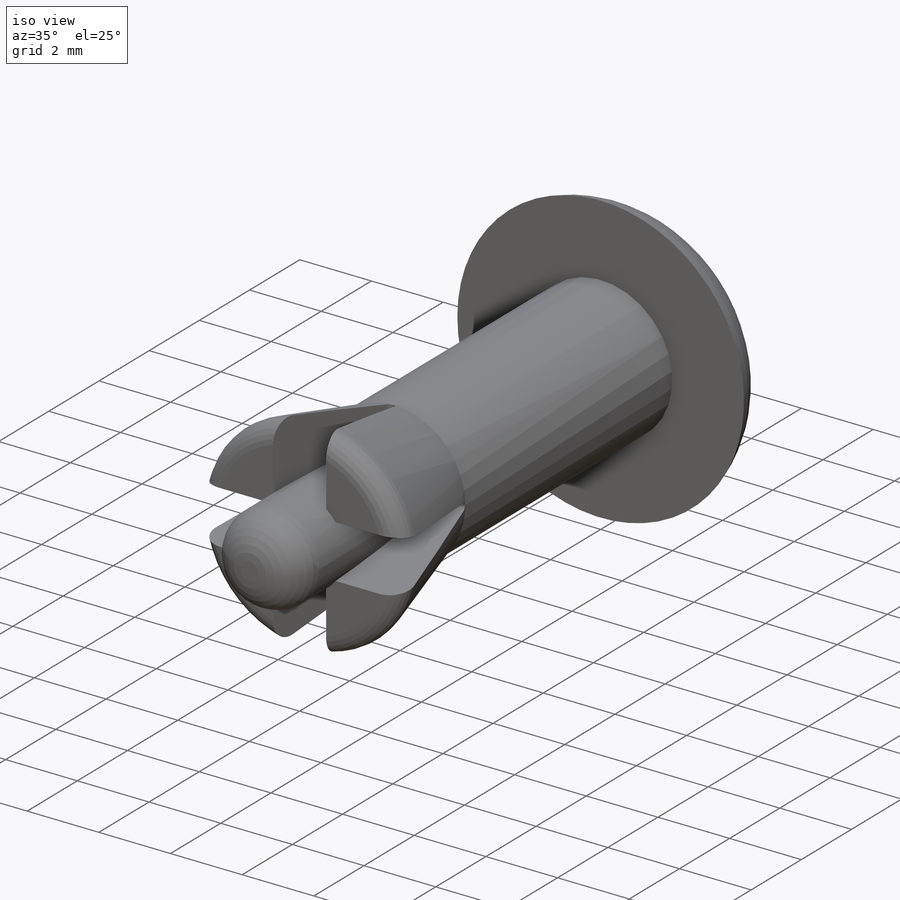
[diagram: iso view]
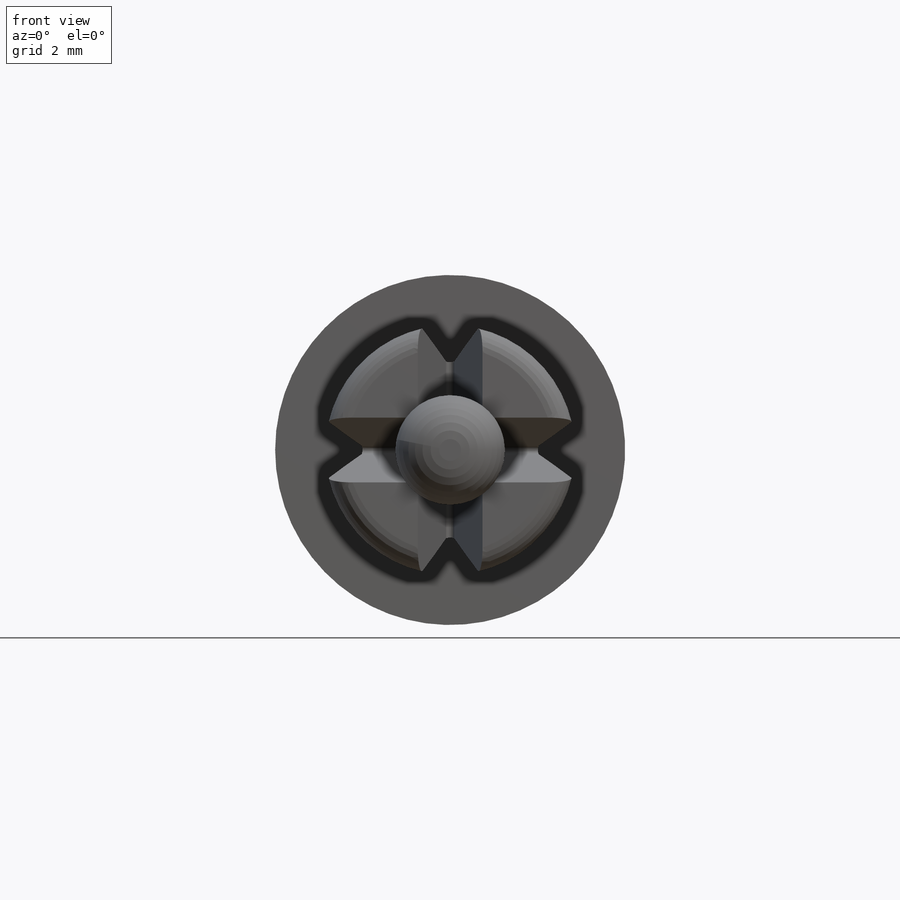
[diagram: front view]
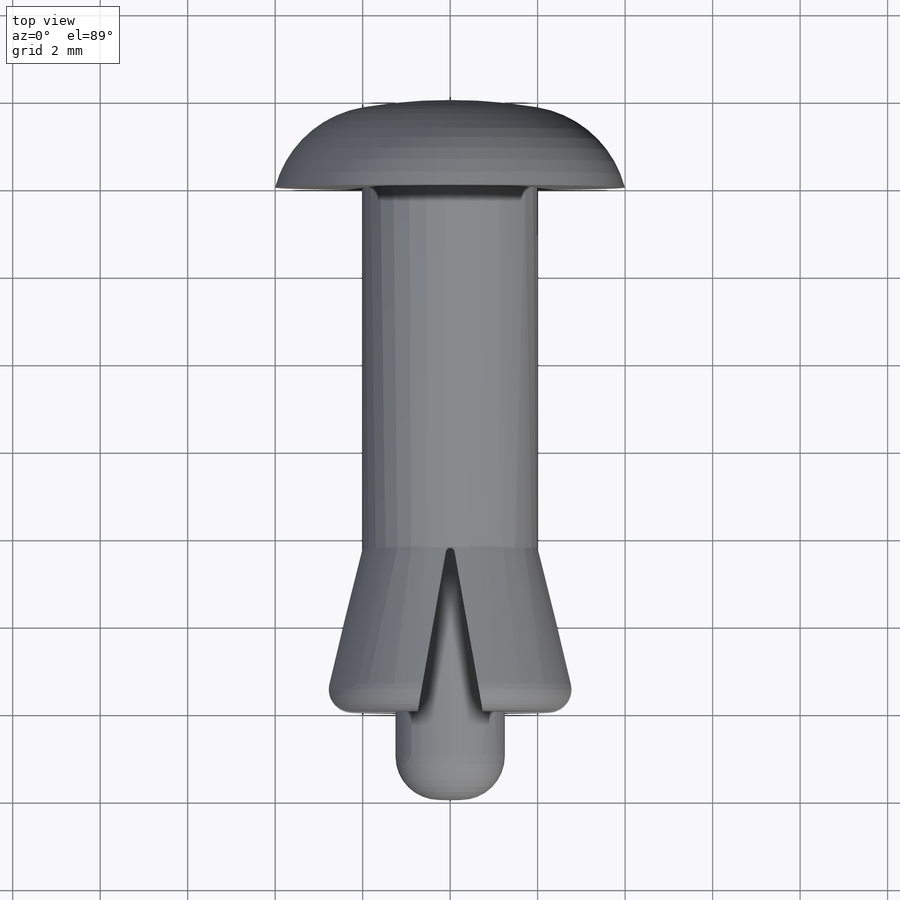
[diagram: top view]
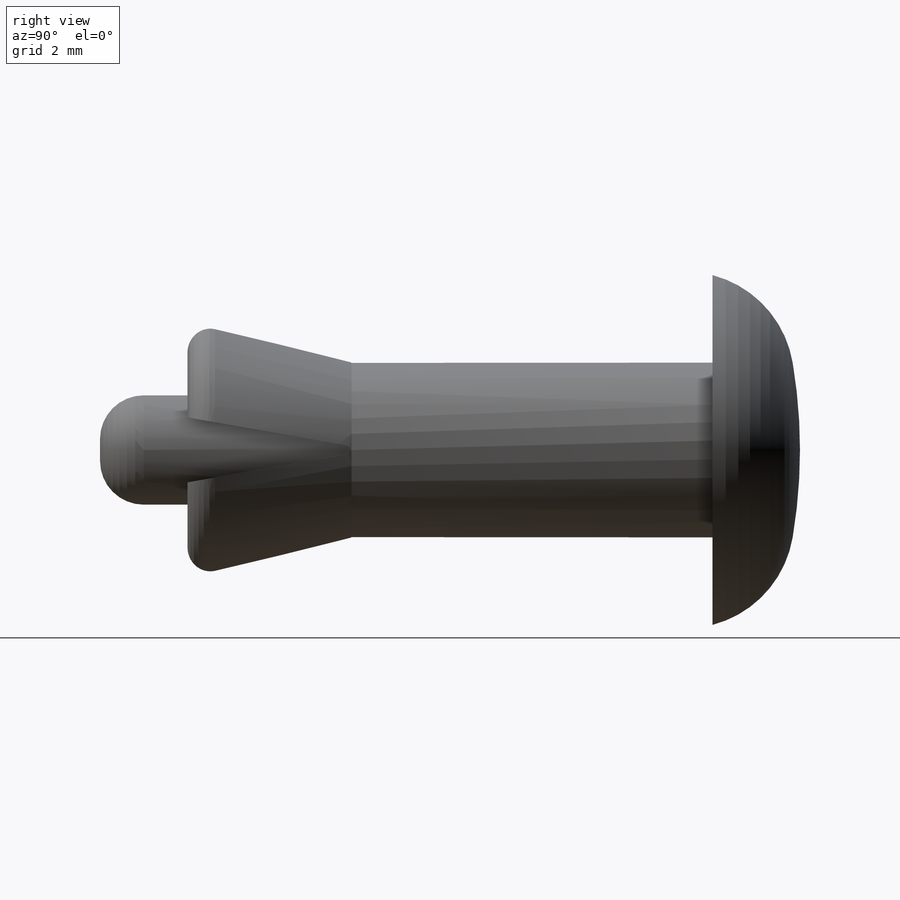
[diagram: right view]
SOLIDWORKS PART (.sldprt)
format: sldprt  version: not decoded by parser v0  size: 251,904 bytes
history: native  units: mm
features: fillet x3, sketch x2, material x1, revolve x1, plane x1, cut_extrude x1, pattern_circular x1 (+12 scaffold rows collapsed)
feature tree (22):
  scaffold x12  (default folders/planes/origin — collapsed)
  material  "PE Low/Medium Density"
  sketch  "Sketch1"  dims[D5=12.0mm D6=2.5mm D1=2.0mm D2=16.0mm D3=8.0mm D4=4.0mm D7=14.0mm D8=8.25mm D9=6.0mm D10=2.5mm]
  revolve  "Revolve1"  Angle=360deg
  fillet  "Fillet1"  Radius=1mm
  fillet  "Fillet2"  Radius=0.5mm
  plane  "Plane1"  Offset=4mm
  sketch  "Sketch2"  dims[c1.D1=~4.606028mm c2.D1=20.0deg c2.D2=7.8mm]
  cut_extrude  "Cut-Extrude1"  [1 undecoded]
  fillet  "Fillet3"  Radius=0.1mm
  pattern_circular  "CirPattern1"  Count=4 Angle=360deg
decode coverage: 7 of 8 modeling features carry decoded parameters
note: ~ marks probable driven/reference dimensions
note: 1 parameter value undecoded
note: suppression state not decoded; provenance and decode notes live in map.json
